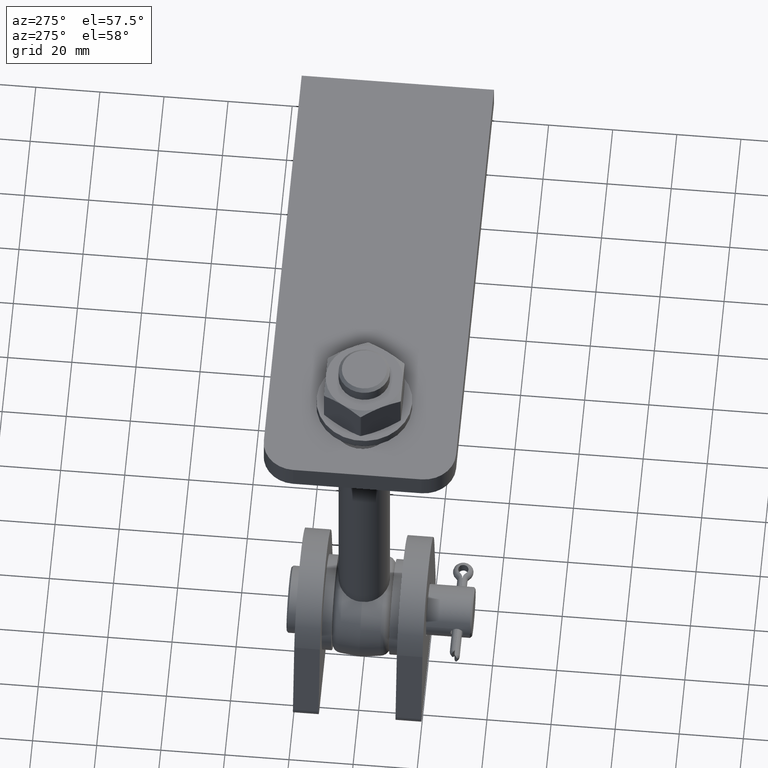
[diagram: clean part render]
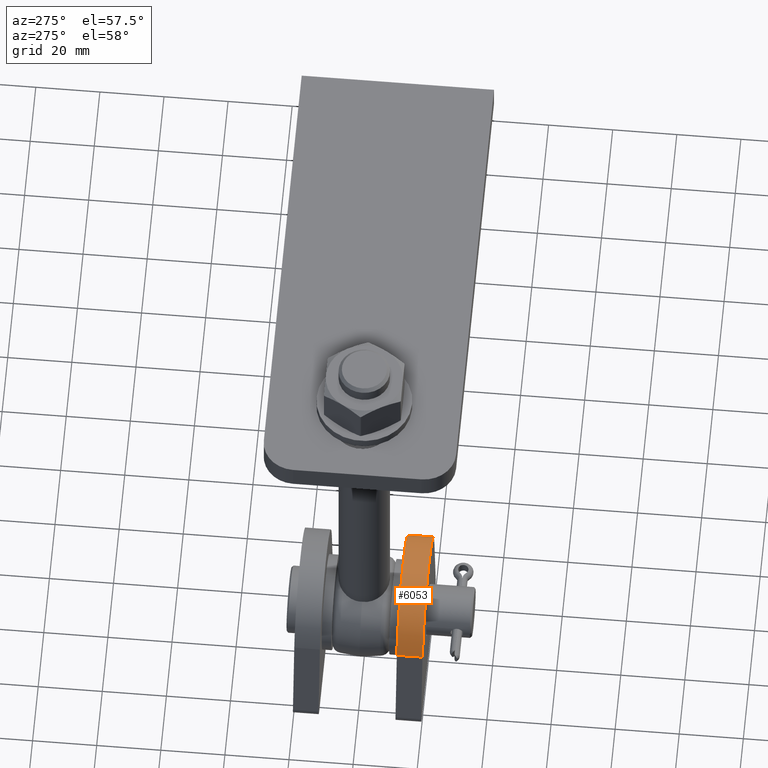
[diagram: same view with one face highlighted and labeled with its STEP entity id]
A machine part, auxiliary view. The second image highlights one B-rep face of the part: STEP entity #6053.
In plain terms, the highlighted cylindrical surface (partial cylindrical patch) has radius 21.5213 mm, axis along (-0, -1, -0).
Its self-contained STEP definition (entity closure, byte-faithful):
#38 = CARTESIAN_POINT ( 'NONE',  ( 1.292469707114105742E-23, 4.000000000000000000, 28.47873303451547145 ) ) ;
#114 = ORIENTED_EDGE ( 'NONE', *, *, #5212, .T. ) ;
#550 = DIRECTION ( 'NONE',  ( -0.000000000000000000, -1.000000000000000000, -0.000000000000000000 ) ) ;
#1357 = CARTESIAN_POINT ( 'NONE',  ( -21.23124138521916748, -4.000000000000000000, 32.00000000000000000 ) ) ;
#1467 = DIRECTION ( 'NONE',  ( -0.000000000000000000, -1.000000000000000000, -0.000000000000000000 ) ) ;
#1852 = LINE ( 'NONE', #2511, #9326 ) ;
#1897 = EDGE_CURVE ( 'NONE', #10714, #13897, #9485, .T. ) ;
#2015 = LINE ( 'NONE', #7555, #4610 ) ;
#2266 = DIRECTION ( 'NONE',  ( 0.000000000000000000, 0.000000000000000000, 1.000000000000000000 ) ) ;
#2511 = CARTESIAN_POINT ( 'NONE',  ( 21.23124138521916748, 4.000000000000000000, 32.00000000000000000 ) ) ;
#2816 = EDGE_CURVE ( 'NONE', #6432, #11301, #3770, .T. ) ;
#2910 = ORIENTED_EDGE ( 'NONE', *, *, #4771, .F. ) ;
#3208 = CYLINDRICAL_SURFACE ( 'NONE', #4363, 21.52126696548452855 ) ;
#3770 = CIRCLE ( 'NONE', #8534, 21.52126696548452855 ) ;
#4363 = AXIS2_PLACEMENT_3D ( 'NONE', #7196, #550, #9503 ) ;
#4426 = ORIENTED_EDGE ( 'NONE', *, *, #1897, .T. ) ;
#4610 = VECTOR ( 'NONE', #6919, 1000.000000000000000 ) ;
#4733 = DIRECTION ( 'NONE',  ( 0.000000000000000000, 1.000000000000000000, 0.000000000000000000 ) ) ;
#4771 = EDGE_CURVE ( 'NONE', #11301, #13897, #1852, .T. ) ;
#5212 = EDGE_CURVE ( 'NONE', #6432, #10714, #2015, .T. ) ;
#5590 = CARTESIAN_POINT ( 'NONE',  ( 21.23124138521916748, -4.000000000000000000, 32.00000000000000000 ) ) ;
#6012 = DIRECTION ( 'NONE',  ( 0.000000000000000000, 0.000000000000000000, 1.000000000000000000 ) ) ;
#6053 = ADVANCED_FACE ( 'NONE', ( #9137 ), #3208, .T. ) ;
#6432 = VERTEX_POINT ( 'NONE', #8061 ) ;
#6919 = DIRECTION ( 'NONE',  ( -0.000000000000000000, -1.000000000000000000, -0.000000000000000000 ) ) ;
#7196 = CARTESIAN_POINT ( 'NONE',  ( 1.292469707114105742E-23, 4.000000000000000000, 28.47873303451547145 ) ) ;
#7555 = CARTESIAN_POINT ( 'NONE',  ( -21.23124138521916748, 4.000000000000000000, 32.00000000000000000 ) ) ;
#8061 = CARTESIAN_POINT ( 'NONE',  ( -21.23124138521916748, 4.000000000000000000, 32.00000000000000000 ) ) ;
#8186 = EDGE_LOOP ( 'NONE', ( #4426, #2910, #11377, #114 ) ) ;
#8534 = AXIS2_PLACEMENT_3D ( 'NONE', #38, #8935, #2266 ) ;
#8935 = DIRECTION ( 'NONE',  ( 0.000000000000000000, 1.000000000000000000, 0.000000000000000000 ) ) ;
#9137 = FACE_OUTER_BOUND ( 'NONE', #8186, .T. ) ;
#9326 = VECTOR ( 'NONE', #1467, 1000.000000000000000 ) ;
#9485 = CIRCLE ( 'NONE', #9953, 21.52126696548452855 ) ;
#9503 = DIRECTION ( 'NONE',  ( 0.000000000000000000, 0.000000000000000000, -1.000000000000000000 ) ) ;
#9953 = AXIS2_PLACEMENT_3D ( 'NONE', #12665, #4733, #6012 ) ;
#10714 = VERTEX_POINT ( 'NONE', #1357 ) ;
#11301 = VERTEX_POINT ( 'NONE', #13924 ) ;
#11377 = ORIENTED_EDGE ( 'NONE', *, *, #2816, .F. ) ;
#12665 = CARTESIAN_POINT ( 'NONE',  ( 1.292469707114105742E-23, -4.000000000000000000, 28.47873303451547145 ) ) ;
#13897 = VERTEX_POINT ( 'NONE', #5590 ) ;
#13924 = CARTESIAN_POINT ( 'NONE',  ( 21.23124138521916748, 4.000000000000000000, 32.00000000000000000 ) ) ;